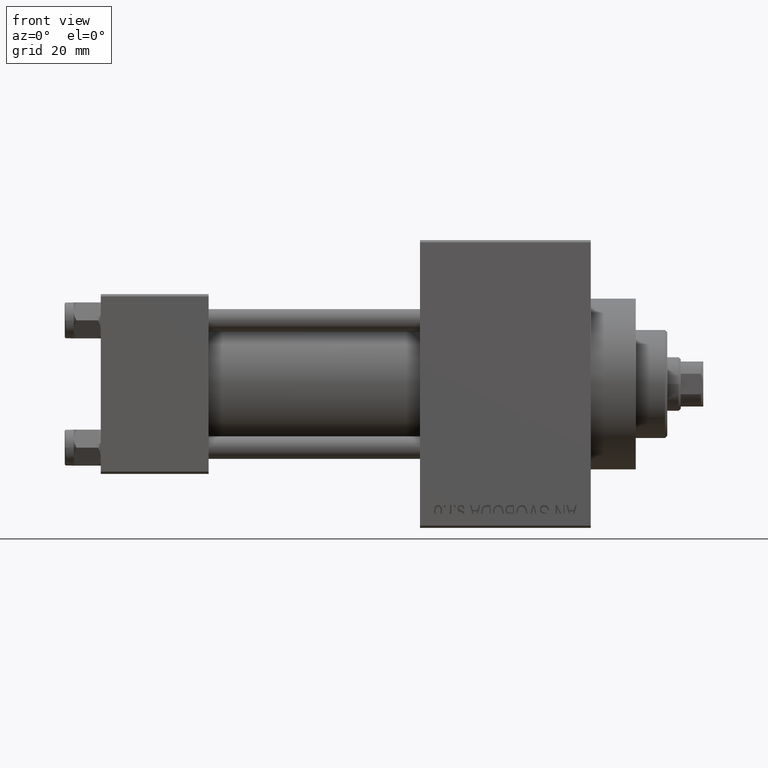
[diagram: clean part render]
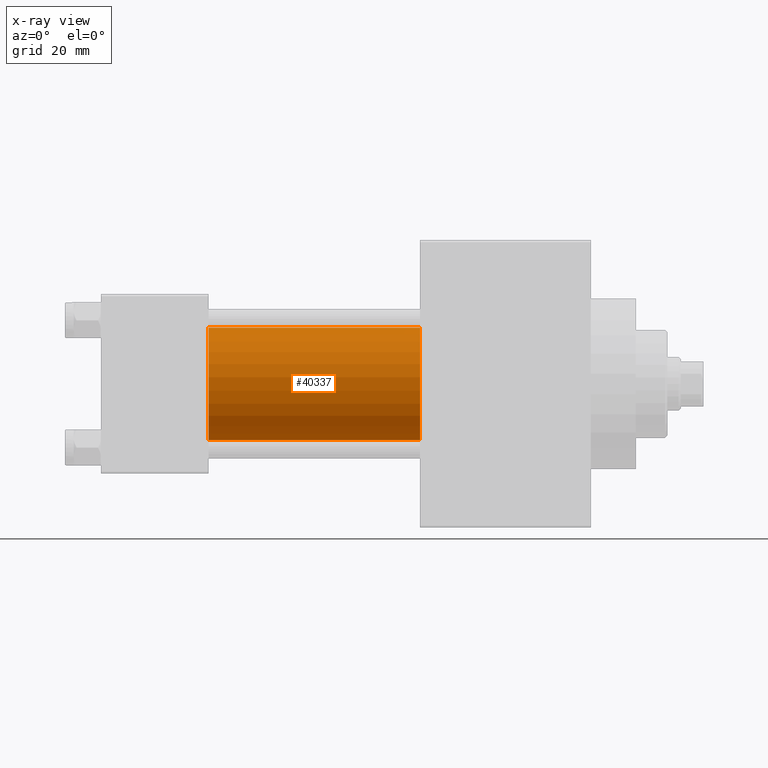
[diagram: x-ray — body ghosted, one internal face saturated and labeled with its STEP entity id]
A machine part, front view, then the same camera in x-ray: the body is ghosted and one INTERNAL B-rep face — a face not visible from any outside direction — is saturated and labeled: STEP entity #40337.
In plain terms, the highlighted cylindrical surface (partial cylindrical patch) has radius 12.5 mm, axis along (-1, -0, -0).
Its self-contained STEP definition (entity closure, byte-faithful):
#1108 = LINE ( 'NONE', #12261, #39143 ) ;
#3844 = EDGE_LOOP ( 'NONE', ( #24047, #42897, #46686, #11970 ) ) ;
#5088 = FACE_OUTER_BOUND ( 'NONE', #3844, .T. ) ;
#5338 = CARTESIAN_POINT ( 'NONE',  ( 71.00000000000001421, -2.602085213965210642E-15, 0.000000000000000000 ) ) ;
#5706 = AXIS2_PLACEMENT_3D ( 'NONE', #47577, #6374, #36390 ) ;
#6374 = DIRECTION ( 'NONE',  ( 1.000000000000000000, 0.000000000000000000, 0.000000000000000000 ) ) ;
#7563 = CIRCLE ( 'NONE', #48775, 12.49999999999999645 ) ;
#8086 = CIRCLE ( 'NONE', #5706, 12.49999999999999645 ) ;
#11970 = ORIENTED_EDGE ( 'NONE', *, *, #12525, .F. ) ;
#12261 = CARTESIAN_POINT ( 'NONE',  ( 71.00000000000001421, -1.071276715031019515E-15, -12.49999999999999645 ) ) ;
#12525 = EDGE_CURVE ( 'NONE', #16538, #19986, #28683, .T. ) ;
#16538 = VERTEX_POINT ( 'NONE', #34265 ) ;
#17037 = CARTESIAN_POINT ( 'NONE',  ( 71.00000000000001421, -2.602085213965210642E-15, 12.49999999999999645 ) ) ;
#19986 = VERTEX_POINT ( 'NONE', #47680 ) ;
#24047 = ORIENTED_EDGE ( 'NONE', *, *, #46870, .T. ) ;
#25730 = VECTOR ( 'NONE', #43120, 1000.000000000000000 ) ;
#26057 = CARTESIAN_POINT ( 'NONE',  ( 24.00000000000000000, -2.602085213965210642E-15, 0.000000000000000000 ) ) ;
#26300 = DIRECTION ( 'NONE',  ( 0.000000000000000000, 0.000000000000000000, -1.000000000000000000 ) ) ;
#27223 = CARTESIAN_POINT ( 'NONE',  ( 24.00000000000000000, -1.071276715031019515E-15, -12.49999999999999645 ) ) ;
#27634 = DIRECTION ( 'NONE',  ( -1.000000000000000000, -0.000000000000000000, -0.000000000000000000 ) ) ;
#27914 = EDGE_CURVE ( 'NONE', #19986, #39729, #7563, .T. ) ;
#28683 = LINE ( 'NONE', #17037, #25730 ) ;
#33072 = VERTEX_POINT ( 'NONE', #45992 ) ;
#33093 = DIRECTION ( 'NONE',  ( 0.000000000000000000, 0.000000000000000000, 1.000000000000000000 ) ) ;
#34265 = CARTESIAN_POINT ( 'NONE',  ( 71.00000000000001421, -2.602085213965210642E-15, 12.49999999999999645 ) ) ;
#36390 = DIRECTION ( 'NONE',  ( 0.000000000000000000, 0.000000000000000000, -1.000000000000000000 ) ) ;
#36822 = DIRECTION ( 'NONE',  ( -1.000000000000000000, -0.000000000000000000, -0.000000000000000000 ) ) ;
#39143 = VECTOR ( 'NONE', #27634, 1000.000000000000000 ) ;
#39339 = CYLINDRICAL_SURFACE ( 'NONE', #45952, 12.49999999999999645 ) ;
#39729 = VERTEX_POINT ( 'NONE', #27223 ) ;
#40337 = ADVANCED_FACE ( 'NONE', ( #5088 ), #39339, .F. ) ;
#41720 = DIRECTION ( 'NONE',  ( 1.000000000000000000, 0.000000000000000000, 0.000000000000000000 ) ) ;
#42897 = ORIENTED_EDGE ( 'NONE', *, *, #47843, .T. ) ;
#43120 = DIRECTION ( 'NONE',  ( -1.000000000000000000, -0.000000000000000000, -0.000000000000000000 ) ) ;
#45952 = AXIS2_PLACEMENT_3D ( 'NONE', #5338, #36822, #33093 ) ;
#45992 = CARTESIAN_POINT ( 'NONE',  ( 71.00000000000001421, -1.071276715031019515E-15, -12.49999999999999645 ) ) ;
#46686 = ORIENTED_EDGE ( 'NONE', *, *, #27914, .F. ) ;
#46870 = EDGE_CURVE ( 'NONE', #16538, #33072, #8086, .T. ) ;
#47577 = CARTESIAN_POINT ( 'NONE',  ( 71.00000000000001421, -2.602085213965210642E-15, 0.000000000000000000 ) ) ;
#47680 = CARTESIAN_POINT ( 'NONE',  ( 24.00000000000000000, -2.602085213965210642E-15, 12.49999999999999645 ) ) ;
#47843 = EDGE_CURVE ( 'NONE', #33072, #39729, #1108, .T. ) ;
#48775 = AXIS2_PLACEMENT_3D ( 'NONE', #26057, #41720, #26300 ) ;